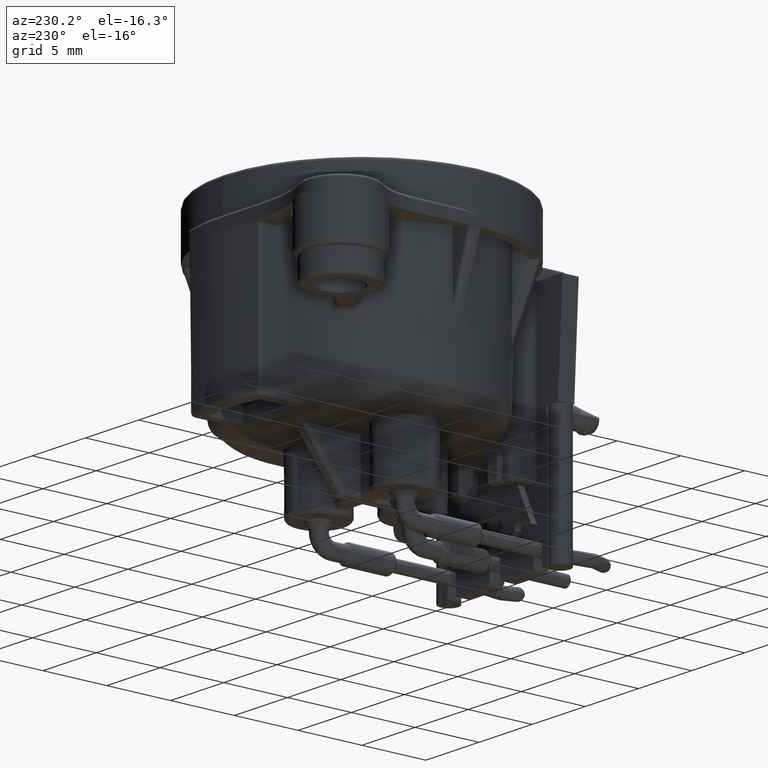
[diagram: clean part render]
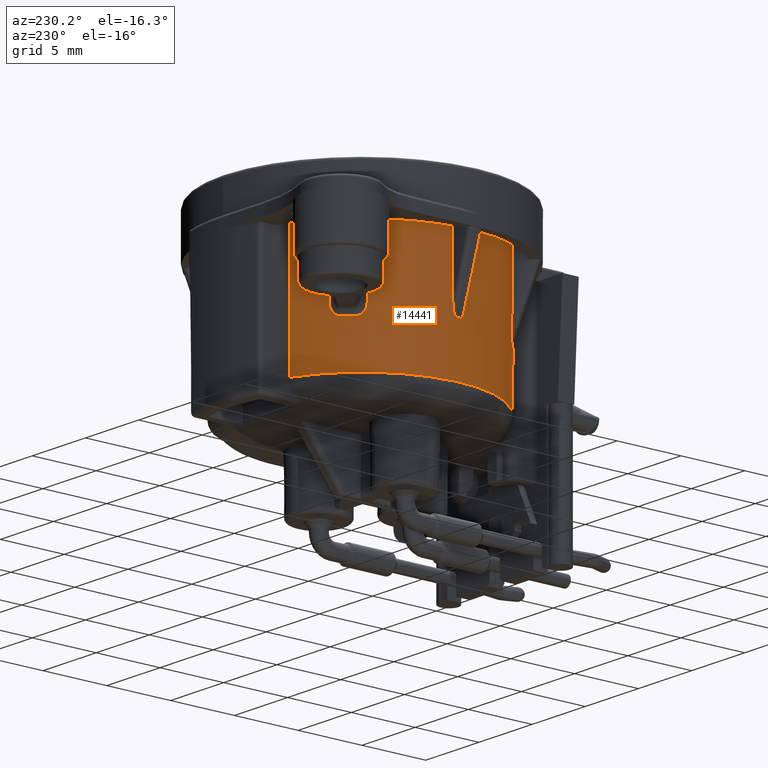
[diagram: same view with one face highlighted and labeled with its STEP entity id]
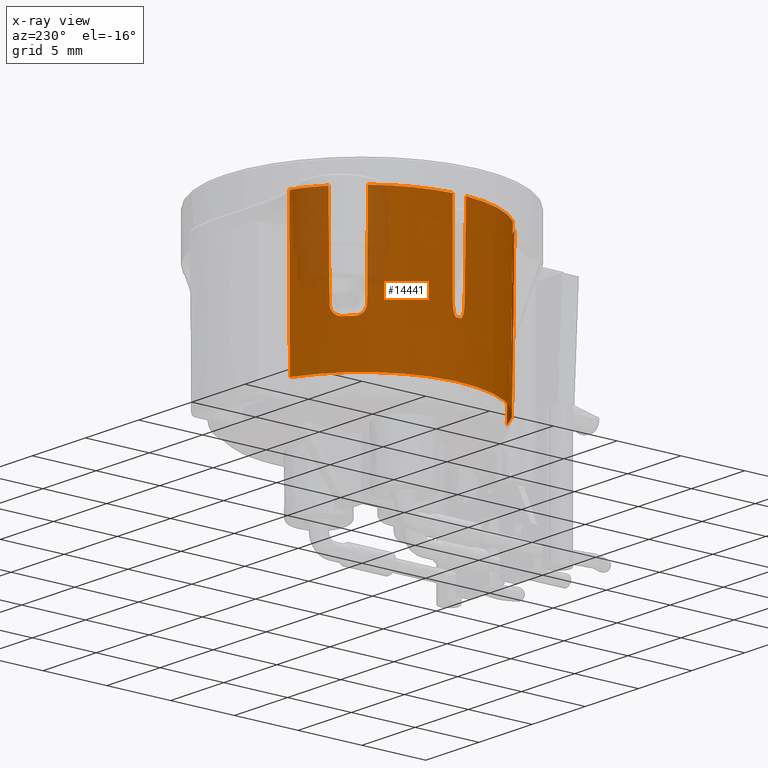
[diagram: x-ray of the same camera — body ghosted, the highlighted face saturated]
A machine part, auxiliary view. The second image highlights one B-rep face of the part: STEP entity #14441.
The next image is the same camera in x-ray: the body ghosted, the highlighted face saturated — about 15% of this face is hidden behind the body in this view.
In plain terms, the highlighted conical surface has half-angle 0.641 deg.
Its self-contained STEP definition (entity closure, byte-faithful):
#694=CARTESIAN_POINT('',(0.E0,0.E0,-1.031678999286E1));
#695=DIRECTION('',(0.E0,0.E0,1.E0));
#696=DIRECTION('',(-3.665302044670E-1,9.304061528243E-1,0.E0));
#697=AXIS2_PLACEMENT_3D('',#694,#695,#696);
#699=CARTESIAN_POINT('',(0.E0,0.E0,1.403357998573E0));
#700=DIRECTION('',(0.E0,0.E0,1.E0));
#701=DIRECTION('',(-3.724300158023E-1,9.280602800085E-1,0.E0));
#702=AXIS2_PLACEMENT_3D('',#699,#700,#701);
#704=CARTESIAN_POINT('',(-5.591986462130E0,7.287253856372E0,1.403357944185E0));
#705=CARTESIAN_POINT('',(-5.590918930213E0,7.276490328698E0,5.824726080853E-1));
#706=CARTESIAN_POINT('',(-5.588769123859E0,7.254935074873E0,-1.060540550333E0));
#707=CARTESIAN_POINT('',(-5.585519380882E0,7.222542830039E0,-3.528788196436E0));
#708=CARTESIAN_POINT('',(-5.583332432664E0,7.200903602390E0,-5.176771629130E0));
#709=CARTESIAN_POINT('',(-5.582232602418E0,7.190071329799E0,-6.001384590311E0));
#711=CARTESIAN_POINT('',(-5.582232602418E0,7.190071329799E0,-6.001384590311E0));
#712=CARTESIAN_POINT('',(-5.582141702800E0,7.189110761084E0,-6.074723944972E0));
#713=CARTESIAN_POINT('',(-5.596612616062E0,7.175906824304E0,-6.214937633490E0));
#714=CARTESIAN_POINT('',(-5.659300322306E0,7.123945154306E0,-6.412435041174E0));
#715=CARTESIAN_POINT('',(-5.756429990231E0,7.043537669862E0,-6.577577274132E0));
#716=CARTESIAN_POINT('',(-5.878256240154E0,6.940597523319E0,-6.701363496002E0));
#717=CARTESIAN_POINT('',(-6.015420645241E0,6.821050574708E0,-6.777310960949E0));
#718=CARTESIAN_POINT('',(-6.109060494722E0,6.736494709119E0,-6.794412402707E0));
#719=CARTESIAN_POINT('',(-6.157005866835E0,6.692395050864E0,-6.794403336568E0));
#721=CARTESIAN_POINT('',(0.E0,0.E0,-6.794403340848E0));
#722=DIRECTION('',(0.E0,0.E0,1.E0));
#723=DIRECTION('',(-6.770566749572E-1,7.359308791564E-1,0.E0));
#724=AXIS2_PLACEMENT_3D('',#721,#722,#723);
#726=CARTESIAN_POINT('',(-6.692407518598E0,6.156992315189E0,-6.794403336571E0));
#727=CARTESIAN_POINT('',(-6.736507306240E0,6.109046587449E0,-6.794412407446E0));
#728=CARTESIAN_POINT('',(-6.821063479700E0,6.015406036034E0,-6.777310881821E0));
#729=CARTESIAN_POINT('',(-6.940611042043E0,5.878240299048E0,-6.701362910177E0));
#730=CARTESIAN_POINT('',(-7.043551565178E0,5.756413016024E0,-6.577575994143E0));
#731=CARTESIAN_POINT('',(-7.123959012662E0,5.659282908430E0,-6.412433436380E0));
#732=CARTESIAN_POINT('',(-7.175920421015E0,5.596595191653E0,-6.214936555734E0));
#733=CARTESIAN_POINT('',(-7.189124231147E0,5.582124383461E0,-6.074723520367E0));
#734=CARTESIAN_POINT('',(-7.190084765938E0,5.582215306980E0,-6.001384590810E0));
#736=CARTESIAN_POINT('',(-7.190084765938E0,5.582215306980E0,-6.001384590810E0));
#737=CARTESIAN_POINT('',(-7.200916731316E0,5.583315510276E0,-5.176771629587E0));
#738=CARTESIAN_POINT('',(-7.222555338365E0,5.585503198550E0,-3.528788196098E0));
#739=CARTESIAN_POINT('',(-7.254946677359E0,5.588754067187E0,-1.060540550487E0));
#740=CARTESIAN_POINT('',(-7.276501319056E0,5.590904615241E0,5.824726081345E-1));
#741=CARTESIAN_POINT('',(-7.287264545848E0,5.591972521332E0,1.403357944258E0));
#743=CARTESIAN_POINT('',(0.E0,0.E0,1.403357998573E0));
#744=DIRECTION('',(0.E0,0.E0,1.E0));
#745=DIRECTION('',(-7.933397871253E-1,6.087790914313E-1,0.E0));
#746=AXIS2_PLACEMENT_3D('',#743,#744,#745);
#748=CARTESIAN_POINT('',(-9.170762149805E0,5.209737875074E-1,1.403357998573E0));
#749=CARTESIAN_POINT('',(-9.162708680573E0,5.144154208279E-1,
6.518436137195E-1));
#750=CARTESIAN_POINT('',(-9.146609948916E0,5.013152542397E-1,
-8.492867920997E-1));
#751=CARTESIAN_POINT('',(-9.122486460108E0,4.817147046670E-1,
-3.095287309420E0));
#752=CARTESIAN_POINT('',(-9.106420532333E0,4.686808051658E-1,
-4.588824259190E0));
#753=CARTESIAN_POINT('',(-9.098391666079E0,4.621721388016E-1,
-5.334643552007E0));
#755=CARTESIAN_POINT('',(-9.097957672760E0,-1.545087093726E-1,
-6.304181678700E0));
#756=CARTESIAN_POINT('',(-9.099769425727E0,-5.150290312420E-2,
-6.298605676420E0));
#757=CARTESIAN_POINT('',(-9.099769425727E0,5.150290312420E-2,
-6.298605676420E0));
#758=CARTESIAN_POINT('',(-9.097957672760E0,1.545087093726E-1,
-6.304181678700E0));
#760=CARTESIAN_POINT('',(-9.098391666079E0,-4.621721388016E-1,
-5.334643552007E0));
#761=CARTESIAN_POINT('',(-9.106420532333E0,-4.686808051661E-1,
-4.588824259159E0));
#762=CARTESIAN_POINT('',(-9.122486460109E0,-4.817147046677E-1,
-3.095287309348E0));
#763=CARTESIAN_POINT('',(-9.146609948917E0,-5.013152542403E-1,
-8.492867920266E-1));
#764=CARTESIAN_POINT('',(-9.162708680573E0,-5.144154208282E-1,
6.518436137509E-1));
#765=CARTESIAN_POINT('',(-9.170762149805E0,-5.209737875074E-1,
1.403357998573E0));
#767=CARTESIAN_POINT('',(0.E0,0.E0,1.403357998573E0));
#768=DIRECTION('',(0.E0,0.E0,1.E0));
#769=DIRECTION('',(-9.983903135544E-1,-5.671668009339E-2,0.E0));
#770=AXIS2_PLACEMENT_3D('',#767,#768,#769);
#772=CARTESIAN_POINT('',(-6.853092202743E0,-6.116324006809E0,1.403357998573E0));
#773=CARTESIAN_POINT('',(-6.842760074484E0,-6.115266809655E0,
6.518436137196E-1));
#774=CARTESIAN_POINT('',(-6.822113335532E0,-6.113146503962E0,
-8.492867920996E-1));
#775=CARTESIAN_POINT('',(-6.791195771492E0,-6.109948302958E0,
-3.095287309421E0));
#776=CARTESIAN_POINT('',(-6.770619086294E0,-6.107804335204E0,
-4.588824259190E0));
#777=CARTESIAN_POINT('',(-6.760339498398E0,-6.106729391553E0,
-5.334643552007E0));
#779=CARTESIAN_POINT('',(-6.323973409207E0,-6.542481721506E0,
-6.304181678700E0));
#780=CARTESIAN_POINT('',(-6.398090616116E0,-6.470926720215E0,
-6.298605676420E0));
#781=CARTESIAN_POINT('',(-6.470926720215E0,-6.398090616116E0,
-6.298605676420E0));
#782=CARTESIAN_POINT('',(-6.542481721506E0,-6.323973409207E0,
-6.304181678700E0));
#784=CARTESIAN_POINT('',(-6.106729391553E0,-6.760339498398E0,
-5.334643552007E0));
#785=CARTESIAN_POINT('',(-6.107804335204E0,-6.770619086294E0,
-4.588824259159E0));
#786=CARTESIAN_POINT('',(-6.109948302958E0,-6.791195771493E0,
-3.095287309348E0));
#787=CARTESIAN_POINT('',(-6.113146503962E0,-6.822113335533E0,
-8.492867920266E-1));
#788=CARTESIAN_POINT('',(-6.115266809656E0,-6.842760074485E0,
6.518436137509E-1));
#789=CARTESIAN_POINT('',(-6.116324006809E0,-6.853092202743E0,1.403357998573E0));
#791=CARTESIAN_POINT('',(0.E0,0.E0,1.403357998573E0));
#792=DIRECTION('',(0.E0,0.E0,1.E0));
#793=DIRECTION('',(-6.658638118848E-1,-7.460733100857E-1,0.E0));
#794=AXIS2_PLACEMENT_3D('',#791,#792,#793);
#796=CARTESIAN_POINT('',(-3.736189007976E0,-8.247549882083E0,
-1.031678995783E1));
#797=CARTESIAN_POINT('',(-3.753449665003E0,-8.255455900098E0,
-9.037186013325E0));
#798=CARTESIAN_POINT('',(-3.787591660516E0,-8.271578231308E0,
-6.462887921746E0));
#799=CARTESIAN_POINT('',(-3.837772820439E0,-8.296618290252E0,
-2.556163403842E0));
#800=CARTESIAN_POINT('',(-3.870616639602E0,-8.313874262461E0,
7.848862071592E-2));
#801=CARTESIAN_POINT('',(-3.886900070705E0,-8.322637794754E0,1.403358009595E0));
#3402=CARTESIAN_POINT('',(-6.116324006809E0,-6.853092202743E0,
1.403357998573E0));
#3430=CARTESIAN_POINT('',(-6.106729391553E0,-6.760339498398E0,
-5.334643552007E0));
#3431=CARTESIAN_POINT('',(-6.106669075858E0,-6.759762704914E0,
-5.376491893828E0));
#3432=CARTESIAN_POINT('',(-6.107712914539E0,-6.757606877820E0,
-5.456907052335E0));
#3433=CARTESIAN_POINT('',(-6.112065301828E0,-6.752006756045E0,
-5.567178102717E0));
#3434=CARTESIAN_POINT('',(-6.118686015834E0,-6.744483087085E0,
-5.668139992335E0));
#3435=CARTESIAN_POINT('',(-6.127213634713E0,-6.735339030609E0,
-5.760610491982E0));
#3436=CARTESIAN_POINT('',(-6.137433666455E0,-6.724740959282E0,
-5.845613636300E0));
#3437=CARTESIAN_POINT('',(-6.149280594754E0,-6.712718741123E0,
-5.924176056144E0));
#3438=CARTESIAN_POINT('',(-6.162839101661E0,-6.699163568290E0,
-5.997280112875E0));
#3439=CARTESIAN_POINT('',(-6.178465867459E0,-6.683709067758E0,
-6.066056284093E0));
#3440=CARTESIAN_POINT('',(-6.196353483133E0,-6.666160504048E0,
-6.129682885381E0));
#3441=CARTESIAN_POINT('',(-6.216379615277E0,-6.646627862484E0,
-6.186175405315E0));
#3442=CARTESIAN_POINT('',(-6.238706428620E0,-6.624939280891E0,
-6.234412982283E0));
#3443=CARTESIAN_POINT('',(-6.264066862295E0,-6.600371381818E0,
-6.273557590834E0));
#3444=CARTESIAN_POINT('',(-6.293409194049E0,-6.571998318597E0,
-6.299923793256E0));
#3445=CARTESIAN_POINT('',(-6.313653379749E0,-6.552444991198E0,
-6.304958077463E0));
#3446=CARTESIAN_POINT('',(-6.323973409207E0,-6.542481721507E0,
-6.304181678700E0));
#3456=CARTESIAN_POINT('',(-6.542481721507E0,-6.323973409207E0,
-6.304181678700E0));
#3457=CARTESIAN_POINT('',(-6.553163577708E0,-6.312909062453E0,
-6.305014074108E0));
#3458=CARTESIAN_POINT('',(-6.573742481930E0,-6.291604116761E0,
-6.298973267293E0));
#3459=CARTESIAN_POINT('',(-6.601747993362E0,-6.262644720842E0,
-6.271665478377E0));
#3460=CARTESIAN_POINT('',(-6.625823363460E0,-6.237795139366E0,
-6.232686744036E0));
#3461=CARTESIAN_POINT('',(-6.647532410291E0,-6.215449820972E0,
-6.183914789285E0));
#3462=CARTESIAN_POINT('',(-6.667273133085E0,-6.195215417634E0,
-6.126100763529E0));
#3463=CARTESIAN_POINT('',(-6.684735063775E0,-6.177424654490E0,
-6.061844469740E0));
#3464=CARTESIAN_POINT('',(-6.699710389834E0,-6.162290691152E0,
-5.994445682176E0));
#3465=CARTESIAN_POINT('',(-6.712847786803E0,-6.149153627232E0,
-5.923315899563E0));
#3466=CARTESIAN_POINT('',(-6.724740379682E0,-6.137434767368E0,
-5.845581107023E0));
#3467=CARTESIAN_POINT('',(-6.735282746981E0,-6.127267478996E0,
-5.761091333066E0));
#3468=CARTESIAN_POINT('',(-6.744432559711E0,-6.118731884290E0,
-5.668731101275E0));
#3469=CARTESIAN_POINT('',(-6.751979136423E0,-6.112087969071E0,
-5.567649246272E0));
#3470=CARTESIAN_POINT('',(-6.757600634691E0,-6.107716247613E0,
-5.457121493325E0));
#3471=CARTESIAN_POINT('',(-6.759761697217E0,-6.106668970482E0,
-5.376565005670E0));
#3472=CARTESIAN_POINT('',(-6.760339498398E0,-6.106729391553E0,
-5.334643552007E0));
#3487=CARTESIAN_POINT('',(-6.853092202743E0,-6.116324006809E0,
1.403357998573E0));
#3530=CARTESIAN_POINT('',(-9.098391666079E0,-4.621721388016E-1,
-5.334643552007E0));
#3531=CARTESIAN_POINT('',(-9.097941161858E0,-4.618069338552E-1,
-5.376491893828E0));
#3532=CARTESIAN_POINT('',(-9.097154867310E0,-4.595444284883E-1,
-5.456907052335E0));
#3533=CARTESIAN_POINT('',(-9.096272585794E0,-4.525069418397E-1,
-5.567178102717E0));
#3534=CARTESIAN_POINT('',(-9.095634100223E0,-4.425053527279E-1,
-5.668139992334E0));
#3535=CARTESIAN_POINT('',(-9.095198213019E0,-4.300095912498E-1,
-5.760610491982E0));
#3536=CARTESIAN_POINT('',(-9.094930898664E0,-4.152889693984E-1,
-5.845613636300E0));
#3537=CARTESIAN_POINT('',(-9.094806950015E0,-3.984109340770E-1,
-5.924176056143E0));
#3538=CARTESIAN_POINT('',(-9.094809307562E0,-3.792386672695E-1,
-5.997280112875E0));
#3539=CARTESIAN_POINT('',(-9.094931117500E0,-3.572608930798E-1,
-6.066056284093E0));
#3540=CARTESIAN_POINT('',(-9.095170863442E0,-3.322037303377E-1,
-6.129682885381E0));
#3541=CARTESIAN_POINT('',(-9.095519813978E0,-3.042314531933E-1,
-6.186175405315E0));
#3542=CARTESIAN_POINT('',(-9.095971111977E0,-2.731078689582E-1,
-6.234412982283E0));
#3543=CARTESIAN_POINT('',(-9.096531518568E0,-2.378032062979E-1,
-6.273557590834E0));
#3544=CARTESIAN_POINT('',(-9.097216894920E0,-1.969922591322E-1,
-6.299923793256E0));
#3545=CARTESIAN_POINT('',(-9.097705405510E0,-1.688511677465E-1,
-6.304958077463E0));
#3546=CARTESIAN_POINT('',(-9.097957672760E0,-1.545087093728E-1,
-6.304181678700E0));
#3556=CARTESIAN_POINT('',(-9.097957672760E0,1.545087093728E-1,
-6.304181678700E0));
#3557=CARTESIAN_POINT('',(-9.097687211097E0,1.698855969480E-1,
-6.305014074108E0));
#3558=CARTESIAN_POINT('',(-9.097173822250E0,1.995019512443E-1,
-6.298973267293E0));
#3559=CARTESIAN_POINT('',(-9.096499324060E0,2.397822235213E-1,
-6.271665478377E0));
#3560=CARTESIAN_POINT('',(-9.095951873945E0,2.743773885488E-1,
-6.232686744036E0));
#3561=CARTESIAN_POINT('',(-9.095501962008E0,3.055285289399E-1,
-6.183914789285E0));
#3562=CARTESIAN_POINT('',(-9.095152877147E0,3.337952117072E-1,
-6.126100763529E0));
#3563=CARTESIAN_POINT('',(-9.094920357489E0,3.587226305719E-1,
-6.061844469740E0));
#3564=CARTESIAN_POINT('',(-9.094808183993E0,3.800131132814E-1,
-5.994445682176E0));
#3565=CARTESIAN_POINT('',(-9.094808419495E0,3.985919627480E-1,
-5.923315899563E0));
#3566=CARTESIAN_POINT('',(-9.094931267288E0,4.152877810957E-1,
-5.845581107023E0));
#3567=CARTESIAN_POINT('',(-9.095196488141E0,4.299317190576E-1,
-5.761091333066E0));
#3568=CARTESIAN_POINT('',(-9.095630805871E0,4.424371905832E-1,
-5.668731101275E0));
#3569=CARTESIAN_POINT('',(-9.096269083934E0,4.524713836560E-1,
-5.567649246272E0));
#3570=CARTESIAN_POINT('',(-9.097152809591E0,4.595376570899E-1,
-5.457121493325E0));
#3571=CARTESIAN_POINT('',(-9.097940374797E0,4.618062958179E-1,
-5.376565005670E0));
#3572=CARTESIAN_POINT('',(-9.098391666079E0,4.621721388016E-1,
-5.334643552007E0));
#4487=CARTESIAN_POINT('',(-3.420973787507E0,8.524742250694E0,1.403357998573E0));
#4496=CARTESIAN_POINT('',(-3.420973787507E0,8.524742250694E0,1.403357998573E0));
#4497=CARTESIAN_POINT('',(-3.409552691456E0,8.513539981498E0,
9.463001900071E-2));
#4498=CARTESIAN_POINT('',(-3.386748253606E0,8.491157935772E0,
-2.518499731146E0));
#4499=CARTESIAN_POINT('',(-3.352654859597E0,8.457652261892E0,
-6.425215728952E0));
#4500=CARTESIAN_POINT('',(-3.330001438777E0,8.435360020258E0,
-9.021040641495E0));
#4501=CARTESIAN_POINT('',(-3.318693605498E0,8.424225104132E0,
-1.031678999286E1));
#12319=CARTESIAN_POINT('',(-9.097957672760E0,1.545087093728E-1,
-6.304181678700E0));
#12321=VERTEX_POINT('',#12319);
#12323=CARTESIAN_POINT('',(-9.098391666079E0,4.621721388016E-1,
-5.334643552007E0));
#12325=VERTEX_POINT('',#12323);
#12328=CARTESIAN_POINT('',(-9.097957672760E0,-1.545087093728E-1,
-6.304181678700E0));
#12330=VERTEX_POINT('',#12328);
#12332=CARTESIAN_POINT('',(-9.098391666079E0,-4.621721388016E-1,
-5.334643552007E0));
#12334=VERTEX_POINT('',#12332);
#12336=CARTESIAN_POINT('',(-6.323973409207E0,-6.542481721507E0,
-6.304181678700E0));
#12338=VERTEX_POINT('',#12336);
#12340=CARTESIAN_POINT('',(-6.106729391553E0,-6.760339498398E0,
-5.334643552007E0));
#12342=VERTEX_POINT('',#12340);
#12343=CARTESIAN_POINT('',(-6.542481721507E0,-6.323973409207E0,
-6.304181678700E0));
#12345=VERTEX_POINT('',#12343);
#12347=CARTESIAN_POINT('',(-6.760339498398E0,-6.106729391553E0,
-5.334643552007E0));
#12349=VERTEX_POINT('',#12347);
#12419=VERTEX_POINT('',#726);
#12420=VERTEX_POINT('',#734);
#12423=CARTESIAN_POINT('',(-6.157005815065E0,6.692394994463E0,
-6.794403340848E0));
#12424=VERTEX_POINT('',#12423);
#12427=VERTEX_POINT('',#711);
#12464=VERTEX_POINT('',#4487);
#12468=CARTESIAN_POINT('',(-5.591983503780E0,7.287250001820E0,
1.403357998573E0));
#12469=VERTEX_POINT('',#12468);
#12482=CARTESIAN_POINT('',(-7.287260696473E0,5.591969566908E0,
1.403357998573E0));
#12483=CARTESIAN_POINT('',(-9.170762149805E0,5.209737875074E-1,
1.403357998573E0));
#12484=VERTEX_POINT('',#12482);
#12485=VERTEX_POINT('',#12483);
#12534=VERTEX_POINT('',#3487);
#12535=CARTESIAN_POINT('',(-9.170762149805E0,-5.209737875074E-1,
1.403357998573E0));
#12536=VERTEX_POINT('',#12535);
#12554=VERTEX_POINT('',#3402);
#12556=VERTEX_POINT('',#4501);
#12982=CARTESIAN_POINT('',(-3.736191480452E0,-8.247555339230E0,
-1.031678999286E1));
#12983=VERTEX_POINT('',#12982);
#12984=CARTESIAN_POINT('',(-3.886900078601E0,-8.322637795467E0,
1.403357998573E0));
#12985=VERTEX_POINT('',#12984);
#14391=CARTESIAN_POINT('',(0.E0,0.E0,-4.456716026380E0));
#14392=DIRECTION('',(0.E0,0.E0,1.E0));
#14393=DIRECTION('',(0.E0,1.E0,0.E0));
#14394=AXIS2_PLACEMENT_3D('',#14391,#14392,#14393);
#14395=CONICAL_SURFACE('',#14394,9.119950158357E0,6.413438789425E-1);
#14397=ORIENTED_EDGE('',*,*,#14396,.F.);
#14399=ORIENTED_EDGE('',*,*,#14398,.F.);
#14401=ORIENTED_EDGE('',*,*,#14400,.T.);
#14403=ORIENTED_EDGE('',*,*,#14402,.T.);
#14405=ORIENTED_EDGE('',*,*,#14404,.T.);
#14406=ORIENTED_EDGE('',*,*,#14365,.T.);
#14408=ORIENTED_EDGE('',*,*,#14407,.T.);
#14410=ORIENTED_EDGE('',*,*,#14409,.T.);
#14412=ORIENTED_EDGE('',*,*,#14411,.T.);
#14414=ORIENTED_EDGE('',*,*,#14413,.T.);
#14416=ORIENTED_EDGE('',*,*,#14415,.F.);
#14418=ORIENTED_EDGE('',*,*,#14417,.F.);
#14420=ORIENTED_EDGE('',*,*,#14419,.F.);
#14422=ORIENTED_EDGE('',*,*,#14421,.T.);
#14424=ORIENTED_EDGE('',*,*,#14423,.T.);
#14426=ORIENTED_EDGE('',*,*,#14425,.T.);
#14428=ORIENTED_EDGE('',*,*,#14427,.F.);
#14430=ORIENTED_EDGE('',*,*,#14429,.F.);
#14432=ORIENTED_EDGE('',*,*,#14431,.F.);
#14434=ORIENTED_EDGE('',*,*,#14433,.T.);
#14436=ORIENTED_EDGE('',*,*,#14435,.T.);
#14438=ORIENTED_EDGE('',*,*,#14437,.F.);
#14439=EDGE_LOOP('',(#14397,#14399,#14401,#14403,#14405,#14406,#14408,#14410,
#14412,#14414,#14416,#14418,#14420,#14422,#14424,#14426,#14428,#14430,#14432,
#14434,#14436,#14438));
#14440=FACE_OUTER_BOUND('',#14439,.F.);
#14441=ADVANCED_FACE('',(#14440),#14395,.T.);
#698=CIRCLE('',#697,9.054352315449E0);
#703=CIRCLE('',#702,9.185548001920E0);
#710=B_SPLINE_CURVE_WITH_KNOTS('',3,(#704,#705,#706,#707,#708,#709),
.UNSPECIFIED.,.F.,.F.,(4,1,1,4),(0.E0,3.333333333333E-1,6.666666666667E-1,1.E0),
.UNSPECIFIED.);
#720=B_SPLINE_CURVE_WITH_KNOTS('',3,(#711,#712,#713,#714,#715,#716,#717,#718,
#719),.UNSPECIFIED.,.F.,.F.,(4,1,1,1,1,1,4),(0.E0,1.666666666667E-1,
3.333333333333E-1,5.E-1,6.666666666667E-1,8.333333333333E-1,1.E0),
.UNSPECIFIED.);
#725=CIRCLE('',#724,9.093782016777E0);
#735=B_SPLINE_CURVE_WITH_KNOTS('',3,(#726,#727,#728,#729,#730,#731,#732,#733,
#734),.UNSPECIFIED.,.F.,.F.,(4,1,1,1,1,1,4),(0.E0,1.666666666667E-1,
3.333333333333E-1,5.E-1,6.666666666667E-1,8.333333333333E-1,1.E0),
.UNSPECIFIED.);
#742=B_SPLINE_CURVE_WITH_KNOTS('',3,(#736,#737,#738,#739,#740,#741),
.UNSPECIFIED.,.F.,.F.,(4,1,1,4),(0.E0,3.333333333333E-1,6.666666666667E-1,1.E0),
.UNSPECIFIED.);
#747=CIRCLE('',#746,9.185548001920E0);
#754=B_SPLINE_CURVE_WITH_KNOTS('',3,(#748,#749,#750,#751,#752,#753),
.UNSPECIFIED.,.F.,.F.,(4,1,1,4),(0.E0,3.333333333333E-1,6.666666666667E-1,1.E0),
.UNSPECIFIED.);
#759=B_SPLINE_CURVE_WITH_KNOTS('',3,(#755,#756,#757,#758),.UNSPECIFIED.,.F.,.F.,
(4,4),(0.E0,1.E0),.UNSPECIFIED.);
#766=B_SPLINE_CURVE_WITH_KNOTS('',3,(#760,#761,#762,#763,#764,#765),
.UNSPECIFIED.,.F.,.F.,(4,1,1,4),(0.E0,3.333333333333E-1,6.666666666667E-1,1.E0),
.UNSPECIFIED.);
#771=CIRCLE('',#770,9.185548001920E0);
#778=B_SPLINE_CURVE_WITH_KNOTS('',3,(#772,#773,#774,#775,#776,#777),
.UNSPECIFIED.,.F.,.F.,(4,1,1,4),(0.E0,3.333333333333E-1,6.666666666667E-1,1.E0),
.UNSPECIFIED.);
#783=B_SPLINE_CURVE_WITH_KNOTS('',3,(#779,#780,#781,#782),.UNSPECIFIED.,.F.,.F.,
(4,4),(0.E0,1.E0),.UNSPECIFIED.);
#790=B_SPLINE_CURVE_WITH_KNOTS('',3,(#784,#785,#786,#787,#788,#789),
.UNSPECIFIED.,.F.,.F.,(4,1,1,4),(0.E0,3.333333333333E-1,6.666666666667E-1,1.E0),
.UNSPECIFIED.);
#795=CIRCLE('',#794,9.185548001920E0);
#802=B_SPLINE_CURVE_WITH_KNOTS('',3,(#796,#797,#798,#799,#800,#801),
.UNSPECIFIED.,.F.,.F.,(4,1,1,4),(0.E0,3.333333333333E-1,6.666666666667E-1,1.E0),
.UNSPECIFIED.);
#3447=B_SPLINE_CURVE_WITH_KNOTS('',3,(#3430,#3431,#3432,#3433,#3434,#3435,#3436,
#3437,#3438,#3439,#3440,#3441,#3442,#3443,#3444,#3445,#3446),.UNSPECIFIED.,.F.,
.F.,(4,1,1,1,1,1,1,1,1,1,1,1,1,1,4),(0.E0,7.142857142857E-2,1.428571428571E-1,
2.142857142857E-1,2.857142857143E-1,3.571428571429E-1,4.285714285714E-1,5.E-1,
5.714285714286E-1,6.428571428571E-1,7.142857142857E-1,7.857142857143E-1,
8.571428571429E-1,9.285714285714E-1,1.E0),.UNSPECIFIED.);
#3473=B_SPLINE_CURVE_WITH_KNOTS('',3,(#3456,#3457,#3458,#3459,#3460,#3461,#3462,
#3463,#3464,#3465,#3466,#3467,#3468,#3469,#3470,#3471,#3472),.UNSPECIFIED.,.F.,
.F.,(4,1,1,1,1,1,1,1,1,1,1,1,1,1,4),(0.E0,7.142857142857E-2,1.428571428571E-1,
2.142857142857E-1,2.857142857143E-1,3.571428571429E-1,4.285714285714E-1,5.E-1,
5.714285714286E-1,6.428571428571E-1,7.142857142857E-1,7.857142857143E-1,
8.571428571429E-1,9.285714285714E-1,1.E0),.UNSPECIFIED.);
#3547=B_SPLINE_CURVE_WITH_KNOTS('',3,(#3530,#3531,#3532,#3533,#3534,#3535,#3536,
#3537,#3538,#3539,#3540,#3541,#3542,#3543,#3544,#3545,#3546),.UNSPECIFIED.,.F.,
.F.,(4,1,1,1,1,1,1,1,1,1,1,1,1,1,4),(0.E0,7.142857142857E-2,1.428571428571E-1,
2.142857142857E-1,2.857142857143E-1,3.571428571429E-1,4.285714285714E-1,5.E-1,
5.714285714286E-1,6.428571428571E-1,7.142857142857E-1,7.857142857143E-1,
8.571428571429E-1,9.285714285714E-1,1.E0),.UNSPECIFIED.);
#3573=B_SPLINE_CURVE_WITH_KNOTS('',3,(#3556,#3557,#3558,#3559,#3560,#3561,#3562,
#3563,#3564,#3565,#3566,#3567,#3568,#3569,#3570,#3571,#3572),.UNSPECIFIED.,.F.,
.F.,(4,1,1,1,1,1,1,1,1,1,1,1,1,1,4),(0.E0,7.142857142857E-2,1.428571428571E-1,
2.142857142857E-1,2.857142857143E-1,3.571428571429E-1,4.285714285714E-1,5.E-1,
5.714285714286E-1,6.428571428571E-1,7.142857142857E-1,7.857142857143E-1,
8.571428571429E-1,9.285714285714E-1,1.E0),.UNSPECIFIED.);
#4502=B_SPLINE_CURVE_WITH_KNOTS('',3,(#4496,#4497,#4498,#4499,#4500,#4501),
.UNSPECIFIED.,.F.,.F.,(4,1,1,4),(0.E0,3.333333333333E-1,6.666666666667E-1,1.E0),
.UNSPECIFIED.);
#14365=EDGE_CURVE('',#12424,#12419,#725,.T.);
#14396=EDGE_CURVE('',#12556,#12983,#698,.T.);
#14398=EDGE_CURVE('',#12464,#12556,#4502,.T.);
#14400=EDGE_CURVE('',#12464,#12469,#703,.T.);
#14402=EDGE_CURVE('',#12469,#12427,#710,.T.);
#14404=EDGE_CURVE('',#12427,#12424,#720,.T.);
#14407=EDGE_CURVE('',#12419,#12420,#735,.T.);
#14409=EDGE_CURVE('',#12420,#12484,#742,.T.);
#14411=EDGE_CURVE('',#12484,#12485,#747,.T.);
#14413=EDGE_CURVE('',#12485,#12325,#754,.T.);
#14415=EDGE_CURVE('',#12321,#12325,#3573,.T.);
#14417=EDGE_CURVE('',#12330,#12321,#759,.T.);
#14419=EDGE_CURVE('',#12334,#12330,#3547,.T.);
#14421=EDGE_CURVE('',#12334,#12536,#766,.T.);
#14423=EDGE_CURVE('',#12536,#12534,#771,.T.);
#14425=EDGE_CURVE('',#12534,#12349,#778,.T.);
#14427=EDGE_CURVE('',#12345,#12349,#3473,.T.);
#14429=EDGE_CURVE('',#12338,#12345,#783,.T.);
#14431=EDGE_CURVE('',#12342,#12338,#3447,.T.);
#14433=EDGE_CURVE('',#12342,#12554,#790,.T.);
#14435=EDGE_CURVE('',#12554,#12985,#795,.T.);
#14437=EDGE_CURVE('',#12983,#12985,#802,.T.);